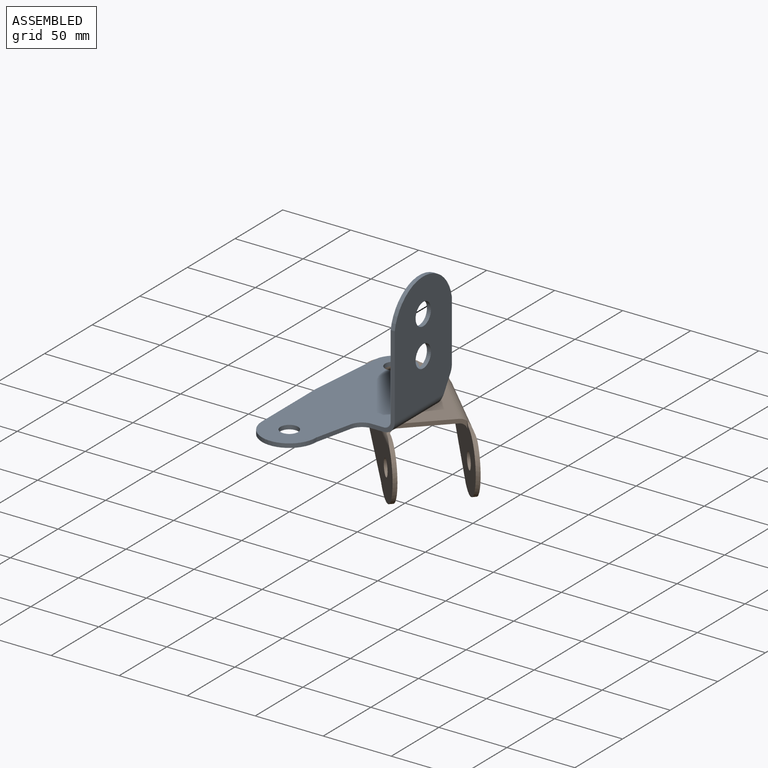
[diagram: assembled view]
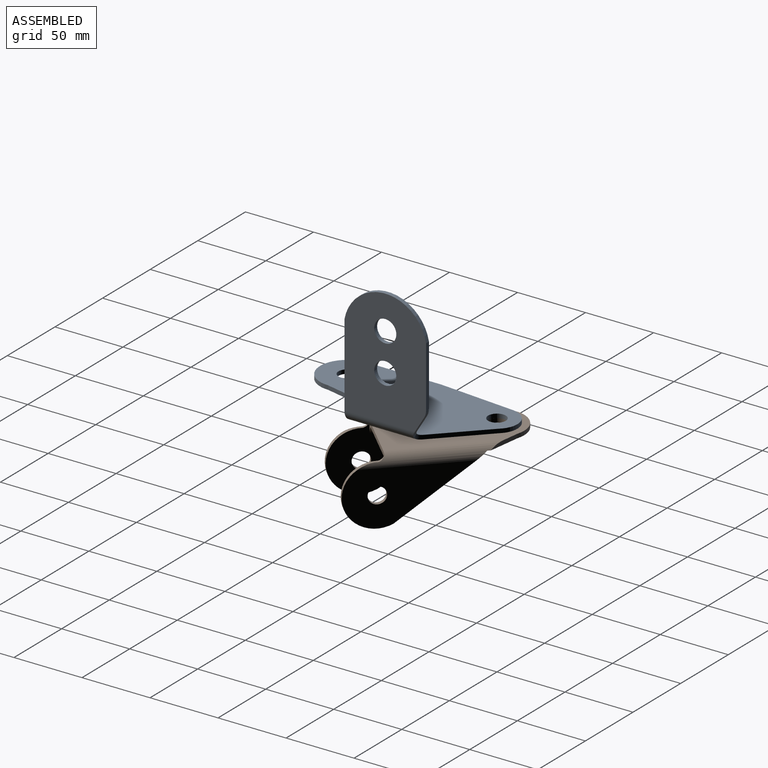
[diagram: assembled view, second angle]
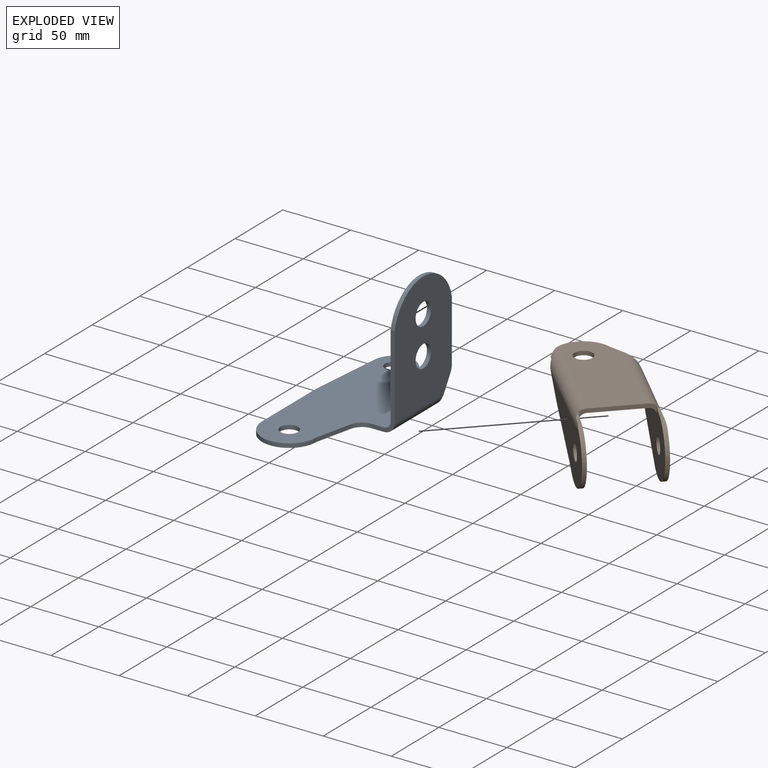
[diagram: exploded view]
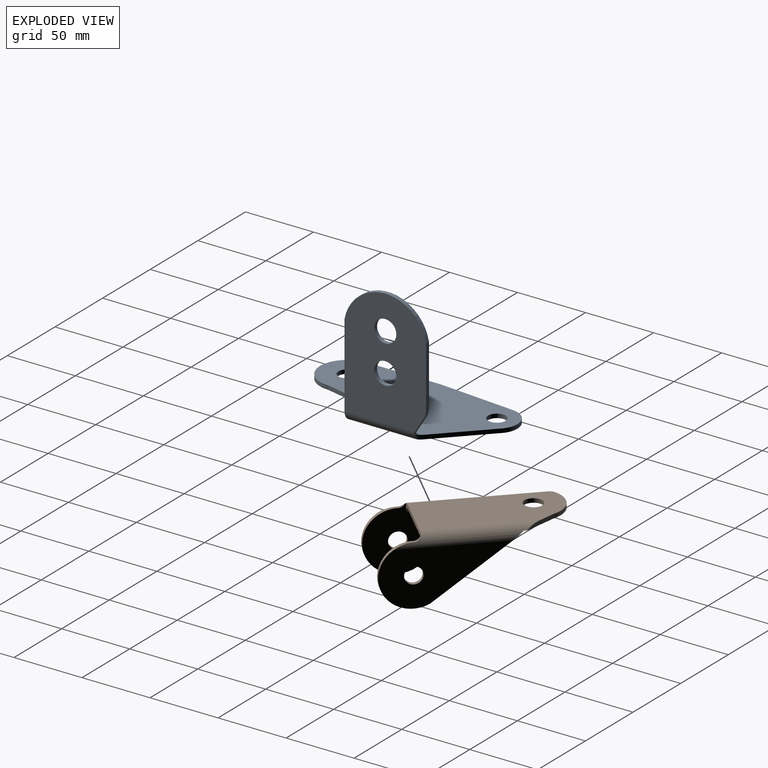
[diagram: exploded view, second angle]
ASSEMBLY  parts=2 mates=3
PART A: 24 faces, bbox 73x145x94 mm
  f0: cylinder r=10mm len=9.75mm, axis (0,0,-1), area 40.4mm2, adj f1,f10,f11,f12
  f1: plane 69x17.03mm, normal (0,-1,0), area 240.7mm2, adj f0,f11,f12,f18,f20,f21,f22,f23
  f2: cylinder r=10mm len=4.37mm, axis (0,0,-1), area 12.3mm2, adj f3,f16,f22,f23
  f3: plane 35.05x33.97mm, normal (0.7,0.72,0), area 146.4mm2, adj f2,f4,f11,f12,f22,f23
  f4: cylinder r=15mm len=26.19mm, axis (0,0,-1), area 104.8mm2, adj f3,f5,f11,f12
  f5: plane 56.34x5.06mm, normal (-1,0.09,0), area 169.7mm2, adj f4,f6,f11,f12
  f6: plane 55x3mm, normal (-1,0,0), area 165mm2, adj f5,f7,f11,f12
  f7: cylinder r=20mm len=40mm, axis (0,0,-1), area 188.5mm2, adj f6,f10,f11,f12
  f8: cylinder r=6.5mm len=13mm, axis (0,0,-1), area 122.5mm2, adj f11,f12
  f9: cylinder r=6.5mm len=13mm, axis (0,0,-1), area 122.5mm2, adj f11,f12
  f10: plane 27.23x6.22mm, normal (0.97,-0.22,0), area 83.8mm2, adj f0,f7,f11,f12
  f11: plane 145x65mm, normal (0,0,1), area 6765.3mm2, adj f0,f1,f3,f4,f5,f6,f7,f8
  f12: plane 145x65mm, normal (0,0,-1), area 6765.3mm2, adj f0,f1,f3,f4,f5,f6,f7,f8
  f13: plane 44.69x3mm, normal (0,1,0), area 134.1mm2, adj f14,f18,f20,f21
  f14: cylinder r=10mm len=5.21mm, axis (1,0,0), area 16.5mm2, adj f13,f15,f20,f21
  f15: plane 12.39x7.57mm, normal (0,0.85,-0.52), area 43.6mm2, adj f14,f16,f20,f21,f22,f23
  f16: cylinder r=10mm len=4.37mm, axis (1,0,0), area 12.3mm2, adj f2,f15,f22,f23
  f17: cylinder r=8.1mm len=16.2mm, axis (1,0,0), area 152.7mm2, adj f20,f21
  f18: cylinder r=30.5mm len=60mm, axis (1,0,0), area 254.3mm2, adj f1,f13,f20,f21
  f19: cylinder r=8.1mm len=16.2mm, axis (1,0,0), area 152.7mm2, adj f20,f21
  f20: plane 86x60mm, normal (-1,0,0), area 4318.9mm2, adj f1,f13,f14,f15,f17,f18,f19,f22
  f21: plane 86x60mm, normal (1,0,0), area 4318.9mm2, adj f1,f13,f14,f15,f17,f18,f19,f23
  f22: cylinder r=5mm len=52.21mm, axis (0,1,0), area 398.5mm2, adj f1,f2,f3,f11,f15,f16,f20
  f23: cylinder r=8mm len=52.21mm, axis (0,1,0), area 632.4mm2, adj f1,f2,f3,f12,f15,f16,f21
PART B: 26 faces, bbox 121.7x54x48.2 mm
  f0: cylinder r=5mm len=6.58mm, axis (0,0,-1), area 2.3mm2, adj f5,f15,f22,f24
  f1: cylinder r=5mm len=6.69mm, axis (0,0,-1), area 3mm2, adj f5,f11,f23,f25
  f2: plane 3.04x1.97mm, normal (-0.54,0.84,0), area 3.5mm2, adj f3,f6,f24
  f3: cylinder r=20mm len=34.59mm, axis (0,0,-1), area 122.9mm2, adj f2,f4,f6,f7,f24
  f4: plane 18.88x13.93mm, normal (-0.59,-0.8,0), area 60.8mm2, adj f3,f6,f7,f25
  f5: plane 46.93x5.92mm, normal (1,0,0), area 143.9mm2, adj f0,f1,f6,f7,f22,f23,f24,f25
  f6: plane 94.81x50.49mm, normal (0,0,1), area 3358.5mm2, adj f2,f3,f4,f5,f8,f12,f16,f22
  f7: plane 94.81x38mm, normal (0,0,-1), area 3273.1mm2, adj f3,f4,f5,f16,f24,f25
  f8: plane 57.64x42.52mm, normal (-0.59,0,0.8), area 219.2mm2, adj f6,f9,f11,f18,f23,f25
  f9: cylinder r=21.85mm len=43.71mm, axis (0,-1,0), area 233.3mm2, adj f8,f10,f11,f18,f25
  f10: cylinder r=5mm len=3.48mm, axis (0,-1,0), area 6.2mm2, adj f9,f11,f25
  f11: plane 82.79x46.23mm, normal (0,1,0), area 2009.1mm2, adj f1,f8,f9,f10,f17,f23,f25
  f12: plane 25.53x16.58mm, normal (-0.54,0,0.84), area 96.1mm2, adj f6,f15,f20,f21,f22,f24
  f13: cylinder r=21.86mm len=43.73mm, axis (0,-1,0), area 251.7mm2, adj f14,f15,f20,f21,f24
  f14: cylinder r=5mm len=3.56mm, axis (0,-1,0), area 6.8mm2, adj f13,f15,f24
  f15: plane 99.17x46.41mm, normal (0,-1,0), area 2357.3mm2, adj f0,f12,f13,f14,f19,f20,f22,f24
  f16: cylinder r=6.5mm len=13mm, axis (0,0,-1), area 122.5mm2, adj f6,f7
  f17: cylinder r=6mm len=12mm, axis (0,-1,0), area 113.1mm2, adj f11,f18
  f18: plane 82.79x39.98mm, normal (0,-1,0), area 1955.1mm2, adj f8,f9,f17,f25
  f19: cylinder r=6mm len=12mm, axis (0,-1,0), area 113.1mm2, adj f15,f21
  f20: plane 44.59x22.74mm, normal (-0.45,0,0.89), area 150.2mm2, adj f12,f13,f15,f21
  f21: plane 99.17x40.17mm, normal (0,1,0), area 2306.1mm2, adj f12,f13,f19,f20,f24
  f22: cylinder r=5mm len=79.98mm, axis (-1,0,0), area 606.1mm2, adj f0,f5,f6,f12,f15
  f23: cylinder r=5mm len=62.67mm, axis (1,0,0), area 472.6mm2, adj f1,f5,f6,f8,f11
  f24: cylinder r=8mm len=107.42mm, axis (1,0,0), area 1087mm2, adj f0,f2,f3,f5,f6,f7,f12,f13
  f25: cylinder r=8mm len=90.76mm, axis (1,0,0), area 871.5mm2, adj f1,f4,f5,f6,f7,f8,f9,f10
PLACE A at identity fixed
PLACE B rot(axis=(0.93,-0.38,0),180deg) t=(0,110,-3)mm
MATE parallel A.f3 <-> B.f18  axis (0.7,0.72,0) through (28.77,102.94,0)mm
MATE planar B.f7 <-> A.f12  axis (0,0,1) through (26.53,92.84,-1.5)mm
MATE cylindrical B.f16 <-> A.f9  axis (0,0,1) through (0,110,-1.5)mm
